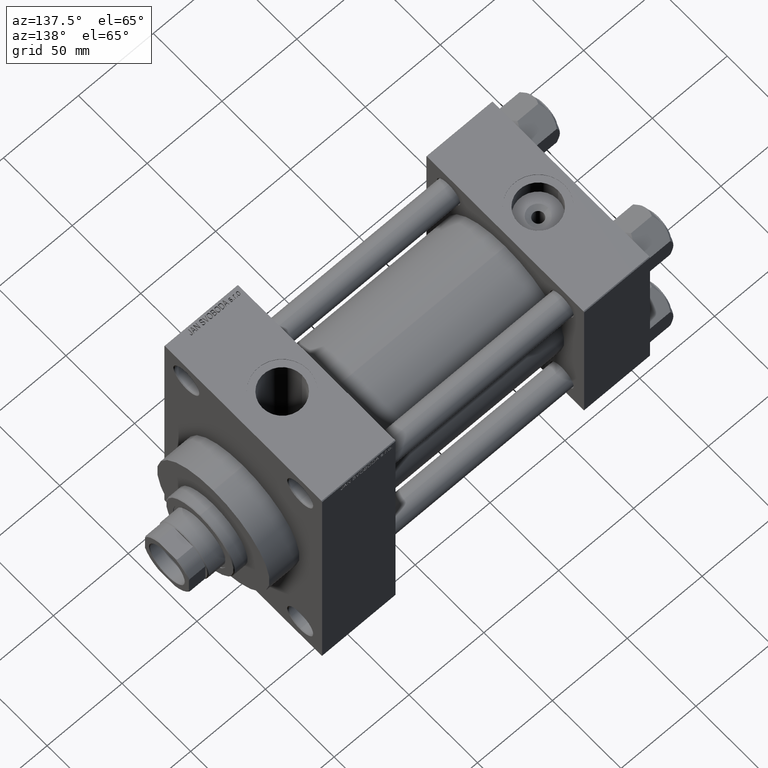
[diagram: clean part render]
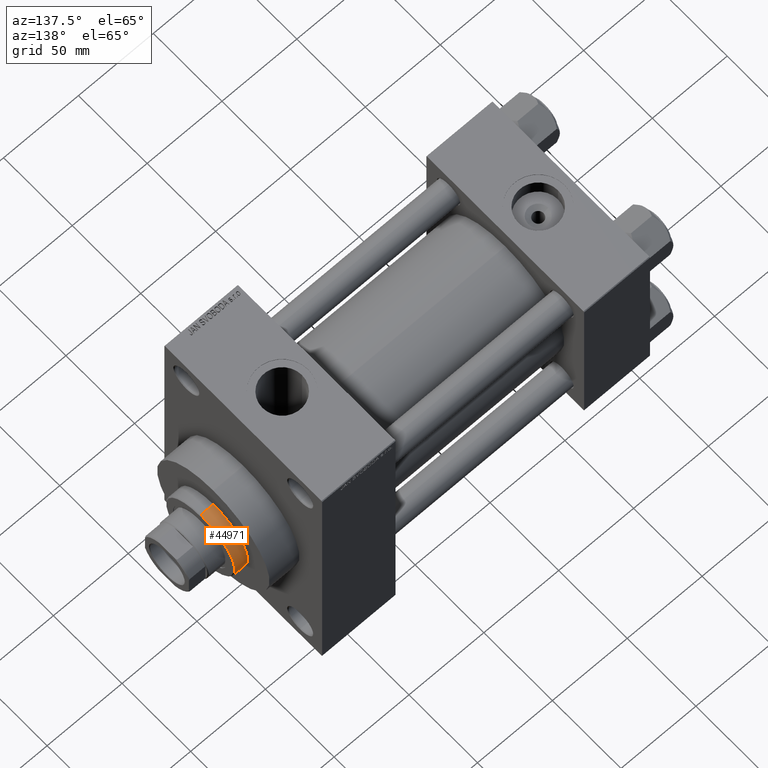
[diagram: same view with one face highlighted and labeled with its STEP entity id]
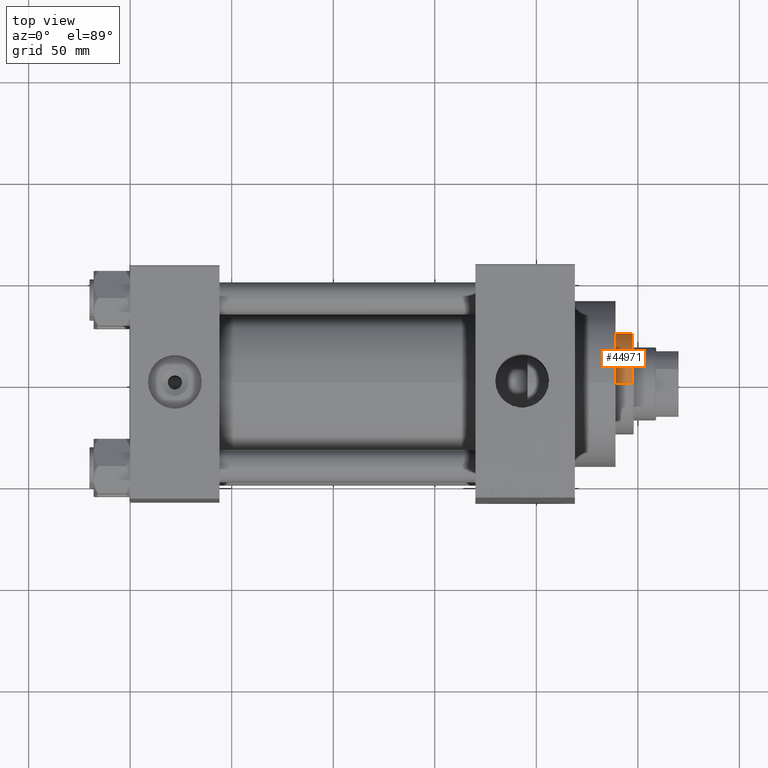
[diagram: same view with one face highlighted and labeled with its STEP entity id]
A machine part, auxiliary view. The second image highlights one B-rep face of the part: STEP entity #44971.
A second angle (top view) of the same face is appended — the face is thin or edge-on in the first view.
In plain terms, the highlighted cylindrical surface (partial cylindrical patch) has radius 25 mm, axis along (-1, -0, 0).
Its self-contained STEP definition (entity closure, byte-faithful):
#41 = ORIENTED_EDGE ( 'NONE', *, *, #15170, .T. ) ;
#296 = VECTOR ( 'NONE', #13221, 1000.000000000000000 ) ;
#392 = CARTESIAN_POINT ( 'NONE',  ( -25.00000000000000000, 0.000000000000000000, 51.75999999999996959 ) ) ;
#2140 = LINE ( 'NONE', #32034, #296 ) ;
#3724 = ORIENTED_EDGE ( 'NONE', *, *, #18227, .T. ) ;
#4682 = AXIS2_PLACEMENT_3D ( 'NONE', #31456, #13123, #9513 ) ;
#5659 = FACE_OUTER_BOUND ( 'NONE', #14402, .T. ) ;
#6889 = CARTESIAN_POINT ( 'NONE',  ( 25.00000000000000000, 3.061616997868383043E-15, 43.25999999999999801 ) ) ;
#8631 = DIRECTION ( 'NONE',  ( 0.000000000000000000, 0.000000000000000000, -1.000000000000000000 ) ) ;
#9032 = EDGE_CURVE ( 'NONE', #46823, #44543, #11715, .T. ) ;
#9513 = DIRECTION ( 'NONE',  ( -1.000000000000000000, 0.000000000000000000, 0.000000000000000000 ) ) ;
#11715 = CIRCLE ( 'NONE', #25557, 25.00000000000000000 ) ;
#13123 = DIRECTION ( 'NONE',  ( -0.000000000000000000, -0.000000000000000000, -1.000000000000000000 ) ) ;
#13221 = DIRECTION ( 'NONE',  ( -0.000000000000000000, -0.000000000000000000, -1.000000000000000000 ) ) ;
#14402 = EDGE_LOOP ( 'NONE', ( #34047, #3724, #41, #18511 ) ) ;
#15170 = EDGE_CURVE ( 'NONE', #16892, #32442, #32610, .T. ) ;
#16587 = EDGE_CURVE ( 'NONE', #46823, #32442, #2140, .T. ) ;
#16892 = VERTEX_POINT ( 'NONE', #6889 ) ;
#18227 = EDGE_CURVE ( 'NONE', #44543, #16892, #37764, .T. ) ;
#18511 = ORIENTED_EDGE ( 'NONE', *, *, #16587, .F. ) ;
#19345 = CARTESIAN_POINT ( 'NONE',  ( -25.00000000000000000, 0.000000000000000000, 43.25999999999999801 ) ) ;
#20293 = AXIS2_PLACEMENT_3D ( 'NONE', #22475, #25136, #40329 ) ;
#20377 = CYLINDRICAL_SURFACE ( 'NONE', #4682, 25.00000000000000000 ) ;
#22475 = CARTESIAN_POINT ( 'NONE',  ( 0.000000000000000000, 0.000000000000000000, 43.25999999999999801 ) ) ;
#23345 = DIRECTION ( 'NONE',  ( 1.000000000000000000, 0.000000000000000000, 0.000000000000000000 ) ) ;
#25136 = DIRECTION ( 'NONE',  ( 0.000000000000000000, 0.000000000000000000, 1.000000000000000000 ) ) ;
#25557 = AXIS2_PLACEMENT_3D ( 'NONE', #41668, #8631, #23345 ) ;
#31456 = CARTESIAN_POINT ( 'NONE',  ( 0.000000000000000000, 0.000000000000000000, 52.25999999999999801 ) ) ;
#32034 = CARTESIAN_POINT ( 'NONE',  ( -25.00000000000000000, 0.000000000000000000, 52.25999999999999801 ) ) ;
#32347 = CARTESIAN_POINT ( 'NONE',  ( 25.00000000000000000, 3.061616997868383043E-15, 51.75999999999996959 ) ) ;
#32442 = VERTEX_POINT ( 'NONE', #19345 ) ;
#32459 = VECTOR ( 'NONE', #37298, 1000.000000000000000 ) ;
#32610 = CIRCLE ( 'NONE', #20293, 25.00000000000000000 ) ;
#34047 = ORIENTED_EDGE ( 'NONE', *, *, #9032, .T. ) ;
#37051 = CARTESIAN_POINT ( 'NONE',  ( 25.00000000000000000, 3.061616997868383043E-15, 52.25999999999999801 ) ) ;
#37298 = DIRECTION ( 'NONE',  ( -0.000000000000000000, -0.000000000000000000, -1.000000000000000000 ) ) ;
#37764 = LINE ( 'NONE', #37051, #32459 ) ;
#40329 = DIRECTION ( 'NONE',  ( 1.000000000000000000, 0.000000000000000000, 0.000000000000000000 ) ) ;
#41668 = CARTESIAN_POINT ( 'NONE',  ( 0.000000000000000000, 0.000000000000000000, 51.75999999999996959 ) ) ;
#44543 = VERTEX_POINT ( 'NONE', #32347 ) ;
#44971 = ADVANCED_FACE ( 'NONE', ( #5659 ), #20377, .T. ) ;
#46823 = VERTEX_POINT ( 'NONE', #392 ) ;